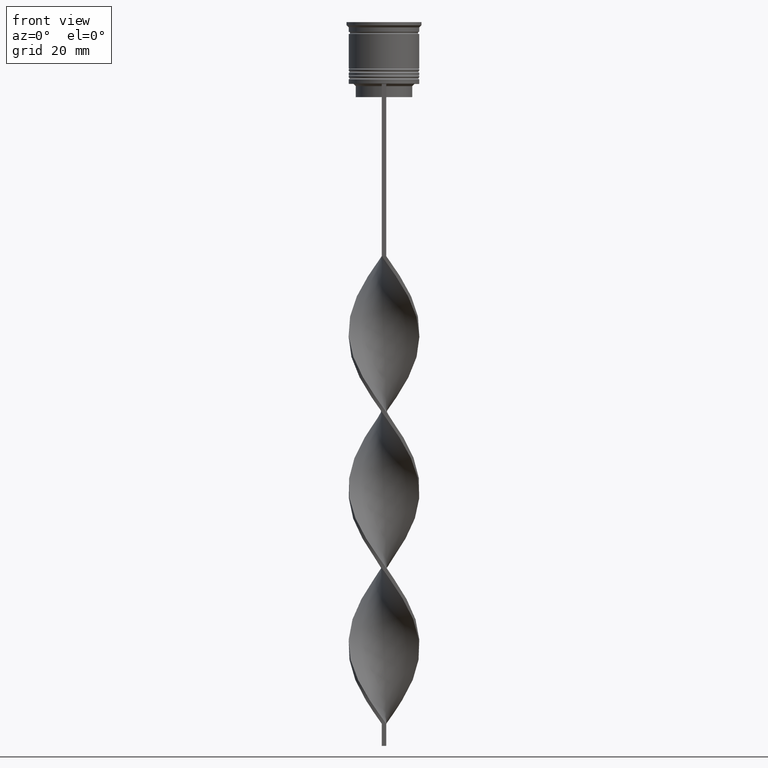
[diagram: clean part render]
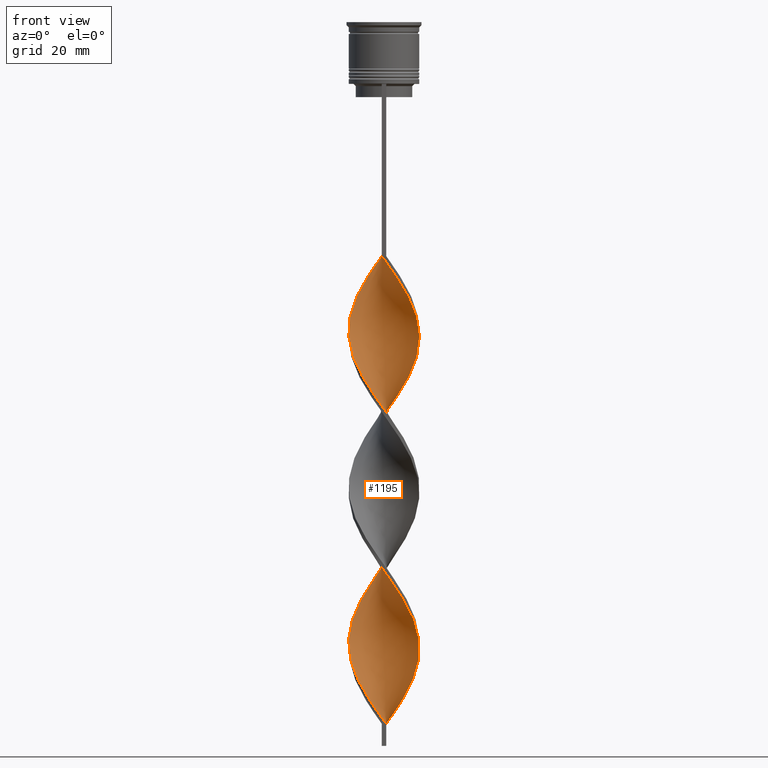
[diagram: same view with one face highlighted and labeled with its STEP entity id]
A machine part, front view. The second image highlights one B-rep face of the part: STEP entity #1195.
In plain terms, the highlighted face is a freeform B-spline surface patch.
Its self-contained STEP definition (entity closure, byte-faithful):
#4 = CARTESIAN_POINT ( 'NONE',  ( 7.178203230275505220, -3.566987298107782589, -100.1111111111111143 ) ) ;
#6 = CARTESIAN_POINT ( 'NONE',  ( -5.106790515527262819, -6.178243328853344707, -116.6000000000000085 ) ) ;
#22 = CARTESIAN_POINT ( 'NONE',  ( -1.340833882125411103, 7.947447882367156602, -124.8444444444444343 ) ) ;
#23 = CARTESIAN_POINT ( 'NONE',  ( -7.453943633173757632, 2.947664213147157763, -102.4666666666666686 ) ) ;
#28 = CARTESIAN_POINT ( 'NONE',  ( -7.144131640230919622, -3.731105258425339244, -75.37777777777777999 ) ) ;
#42 = CARTESIAN_POINT ( 'NONE',  ( 7.453943633173757632, -2.947664213147156875, -137.8000000000000114 ) ) ;
#43 = CARTESIAN_POINT ( 'NONE',  ( 6.678203230275510549, 4.433012701892212526, -111.8888888888888999 ) ) ;
#46 = EDGE_CURVE ( 'NONE', #2836, #1637, #2538, .T. ) ;
#60 = CARTESIAN_POINT ( 'NONE',  ( -5.106790515527257490, 6.178243328853340266, -130.7333333333333485 ) ) ;
#62 = CARTESIAN_POINT ( 'NONE',  ( 0.3408338821254181528, 8.052552117632835404, -122.4888888888888800 ) ) ;
#69 = CARTESIAN_POINT ( 'NONE',  ( 5.106790515527261931, 6.178243328853344707, -81.26666666666666572 ) ) ;
#74 = VERTEX_POINT ( 'NONE', #1601 ) ;
#86 = CARTESIAN_POINT ( 'NONE',  ( -5.756150055891653849, 5.641498017056839842, -61.24444444444443292 ) ) ;
#87 = CARTESIAN_POINT ( 'NONE',  ( -4.457430975162865572, -6.714988640649846019, -117.7777777777777999 ) ) ;
#89 = CARTESIAN_POINT ( 'NONE',  ( -0.4999999999999998890, -8.000000000000003553, -53.00000000000000000 ) ) ;
#99 = CARTESIAN_POINT ( 'NONE',  ( 7.972812552651890705, -1.180687656695943444, -103.6444444444444457 ) ) ;
#109 = CARTESIAN_POINT ( 'NONE',  ( -6.678203230275511437, 4.433012701892224072, -100.1111111111111143 ) ) ;
#120 = CARTESIAN_POINT ( 'NONE',  ( -3.710665873427700490, 7.104995339602903748, -128.3777777777777942 ) ) ;
#124 = CARTESIAN_POINT ( 'NONE',  ( -5.106790515527262819, -6.178243328853344707, -116.6000000000000085 ) ) ;
#136 = CARTESIAN_POINT ( 'NONE',  ( -4.297773521152312703, 6.766028581145818954, -95.40000000000000568 ) ) ;
#154 = CARTESIAN_POINT ( 'NONE',  ( 4.457430975162857578, -6.714988640649844243, -94.22222222222221433 ) ) ;
#181 = CARTESIAN_POINT ( 'NONE',  ( 7.903910931312363886, -1.333488653825366521, -69.48888888888889426 ) ) ;
#197 = CARTESIAN_POINT ( 'NONE',  ( 1.340833882125408216, -7.947447882367158378, -89.51111111111111995 ) ) ;
#198 = CARTESIAN_POINT ( 'NONE',  ( 0.3408338821254121020, -8.052552117632842510, -54.17777777777777715 ) ) ;
#217 = CARTESIAN_POINT ( 'NONE',  ( 8.044066236508127687, 0.5027541397817566482, -106.0000000000000000 ) ) ;
#233 = CARTESIAN_POINT ( 'NONE',  ( 7.178203230275513214, 3.566987298107780813, -147.2222222222222285 ) ) ;
#234 = CARTESIAN_POINT ( 'NONE',  ( 6.678203230275512325, -4.433012701892221408, -64.77777777777778567 ) ) ;
#250 = CARTESIAN_POINT ( 'NONE',  ( 7.144131640230919622, 3.731105258425336135, -110.7111111111110944 ) ) ;
#251 = CARTESIAN_POINT ( 'NONE',  ( 5.106790515527261931, 6.178243328853344707, -151.9333333333333371 ) ) ;
#259 = CARTESIAN_POINT ( 'NONE',  ( 6.212274820320101476, -5.134920145359099131, -63.60000000000000853 ) ) ;
#272 = CARTESIAN_POINT ( 'NONE',  ( 0.5000000000000008882, 8.000000000000003553, -159.0000000000000000 ) ) ;
#273 = CARTESIAN_POINT ( 'NONE',  ( -5.610593300639726166, 5.724617263609566464, -97.75555555555555998 ) ) ;
#290 = CARTESIAN_POINT ( 'NONE',  ( -6.212274820320096147, -5.134920145359094690, -148.4000000000000057 ) ) ;
#292 = CARTESIAN_POINT ( 'NONE',  ( -1.174219726175170564, 7.929136651279328873, -90.68888888888888289 ) ) ;
#298 = CARTESIAN_POINT ( 'NONE',  ( -7.903910931312356780, -1.333488653825362746, -71.84444444444444855 ) ) ;
#299 = CARTESIAN_POINT ( 'NONE',  ( 7.453943633173757632, -2.947664213147156875, -67.13333333333333997 ) ) ;
#301 =( BOUNDED_CURVE ( )  B_SPLINE_CURVE ( 2, ( #2823, #198, #3361, #2248, #1350, #785, #3056, #2843, #2784, #2517, #234, #1020, #1064, #1909, #181, #730, #2229, #436, #3398, #2182, #1949, #3349, #3108, #3077, #1626, #494, #1375, #3127, #3517, #2862, #3717, #2884, #292, #1411, #1766, #2026, #1391, #825, #273, #2613, #2921, #2351, #23, #867, #3209, #1436, #578, #1163, #2554, #2935, #2597, #1752, #902, #1104, #6, #2270, #2066, #2331, #2903, #1448, #2049, #3494, #3440, #2631, #1728, #1990, #890, #1782, #307, #1464, #2311, #599, #42, #615, #1144, #3740, #3223, #3478, #1185, #3145, #2009, #2574, #535, #1708, #251, #1127, #2293, #3186, #3460, #841, #3166 ),
 .UNSPECIFIED., .F., .T. ) 
 B_SPLINE_CURVE_WITH_KNOTS ( ( 3, 2, 2, 2, 2, 2, 2, 2, 2, 2, 2, 2, 2, 2, 2, 2, 2, 2, 2, 2, 2, 2, 2, 2, 2, 2, 2, 2, 2, 2, 2, 2, 2, 2, 2, 2, 2, 2, 2, 2, 2, 2, 2, 2, 2, 3 ),
 ( 0.000000000000000000, 0.01666666666666666644, 0.03333333333333333287, 0.05000000000000000971, 0.06666666666666666574, 0.08333333333333332871, 0.1000000000000000194, 0.1166666666666666546, 0.1333333333333333315, 0.1499999999999999944, 0.1666666666666666574, 0.1833333333333333204, 0.2000000000000000389, 0.2166666666666666741, 0.2333333333333333093, 0.2500000000000000000, 0.2666666666666666630, 0.2833333333333333259, 0.2999999999999999889, 0.3166666666666666519, 0.3333333333333333148, 0.3499999999999999223, 0.3666666666666666408, 0.3833333333333333592, 0.4000000000000000777, 0.4166666666666666852, 0.4333333333333333481, 0.4500000000000000111, 0.4666666666666666186, 0.4833333333333333370, 0.5000000000000000000, 0.5166666666666667185, 0.5333333333333333259, 0.5500000000000000444, 0.5666666666666666519, 0.5833333333333333703, 0.5999999999999999778, 0.6166666666666666963, 0.6333333333333333037, 0.6500000000000000222, 0.6666666666666666297, 0.6833333333333332371, 0.6999999999999998446, 0.7166666666666666741, 0.7333333333333332815, 0.7500000000000000000 ),
 .UNSPECIFIED. ) 
 CURVE ( )  GEOMETRIC_REPRESENTATION_ITEM ( )  RATIONAL_B_SPLINE_CURVE ( ( 1.000000000000000000, 0.9945218953682732899, 1.000000000000000000, 0.9945218953682732899, 1.000000000000000000, 0.9945218953682732899, 1.000000000000000000, 0.9945218953682732899, 1.000000000000000000, 0.9945218953682732899, 1.000000000000000000, 0.9945218953682732899, 1.000000000000000000, 0.9945218953682732899, 1.000000000000000000, 0.9945218953682732899, 1.000000000000000000, 0.9945218953682732899, 1.000000000000000000, 0.9945218953682732899, 1.000000000000000000, 0.9945218953682732899, 1.000000000000000000, 0.9945218953682732899, 1.000000000000000000, 0.9945218953682732899, 1.000000000000000000, 0.9945218953682732899, 1.000000000000000000, 0.9945218953682732899, 1.000000000000000000, 0.9945218953682732899, 1.000000000000000000, 0.9945218953682732899, 1.000000000000000000, 0.9945218953682732899, 1.000000000000000000, 0.9945218953682732899, 1.000000000000000000, 0.9945218953682732899, 1.000000000000000000, 0.9945218953682732899, 1.000000000000000000, 0.9945218953682732899, 1.000000000000000000, 0.9945218953682732899, 1.000000000000000000, 0.9945218953682732899, 1.000000000000000000, 0.9945218953682732899, 1.000000000000000000, 0.9945218953682732899, 1.000000000000000000, 0.9945218953682732899, 1.000000000000000000, 0.9945218953682732899, 1.000000000000000000, 0.9945218953682732899, 1.000000000000000000, 0.9945218953682732899, 1.000000000000000000, 0.9945218953682732899, 1.000000000000000000, 0.9945218953682732899, 1.000000000000000000, 0.9945218953682732899, 1.000000000000000000, 0.9945218953682732899, 1.000000000000000000, 0.9945218953682732899, 1.000000000000000000, 0.9945218953682732899, 1.000000000000000000, 0.9945218953682732899, 1.000000000000000000, 0.9945218953682732899, 1.000000000000000000, 0.9945218953682732899, 1.000000000000000000, 0.9945218953682732899, 1.000000000000000000, 0.9945218953682732899, 1.000000000000000000, 0.9945218953682732899, 1.000000000000000000, 0.9945218953682732899, 1.000000000000000000, 0.9945218953682732899, 1.000000000000000000, 0.9945218953682732899, 1.000000000000000000 ) ) 
 REPRESENTATION_ITEM ( '' )  );
#307 = CARTESIAN_POINT ( 'NONE',  ( 5.610593300639727055, -5.724617263609565576, -133.0888888888889028 ) ) ;
#320 =( BOUNDED_SURFACE ( )  B_SPLINE_SURFACE ( 1, 2, ( 
 ( #3483, #3155, #1719, #1170, #587, #3214, #2603, #2909, #2342, #259, #1425, #1153, #299, #3468, #2322, #896, #1209, #944, #1558, #3026, #2736, #984, #2149, #3609, #69, #2676, #1004, #1929, #372, #1839, #1498, #1536, #2969, #2114, #2095, #3565, #136, #406, #2697, #2375, #109, #701, #3007, #351, #1863, #3311, #2721, #921, #1572, #1810, #1289, #336, #3253, #1824, #124, #87, #3271, #658, #644, #3543, #392, #2449, #2213, #3381, #2986, #1517, #1229, #766, #1254, #3290, #2658, #2394, #678, #2417, #3582, #965, #2130, #1274, #2433, #3598, #233, #1686, #1103, #3438, #1643, #475, #3165, #2310, #1948, #3716, #272 ),
 ( #2516, #1967, #534, #840, #2228, #3397, #1374, #3477, #2292, #2534, #2008, #1410, #1143, #3696, #2822, #1390, #2247, #801, #1083, #3459, #784, #2553, #3676, #2595, #866, #2269, #3091, #553, #3415, #2798, #824, #197, #1727, #2883, #1989, #3144, #1435, #1349, #3126, #1661, #4, #517, #1063, #3107, #2842, #217, #493, #1707, #2861, #250, #2573, #3739, #1125, #1489, #2651, #1751, #632, #2980, #901, #1184, #3208, #22, #3221, #2330, #3493, #2902, #60, #2630, #2025, #1447, #889, #1221, #363, #2048, #577, #3516, #2383, #2612, #914, #1200, #2367, #290, #1801, #1528, #2065, #2350, #598, #1162, #614, #1764, #2920 ) ),
 .UNSPECIFIED., .F., .F., .F. ) 
 B_SPLINE_SURFACE_WITH_KNOTS ( ( 2, 2 ),
 ( 3, 2, 2, 2, 2, 2, 2, 2, 2, 2, 2, 2, 2, 2, 2, 2, 2, 2, 2, 2, 2, 2, 2, 2, 2, 2, 2, 2, 2, 2, 2, 2, 2, 2, 2, 2, 2, 2, 2, 2, 2, 2, 2, 2, 2, 3 ),
 ( 0.000000000000000000, 1.000000000000000000 ),
 ( 0.000000000000000000, 0.01666666666666666644, 0.03333333333333333287, 0.05000000000000000278, 0.06666666666666666574, 0.08333333333333332871, 0.1000000000000000056, 0.1166666666666666685, 0.1333333333333333315, 0.1499999999999999944, 0.1666666666666666574, 0.1833333333333333204, 0.2000000000000000111, 0.2166666666666666741, 0.2333333333333333370, 0.2500000000000000000, 0.2666666666666666630, 0.2833333333333333259, 0.2999999999999999889, 0.3166666666666666519, 0.3333333333333333148, 0.3499999999999999778, 0.3666666666666666408, 0.3833333333333333592, 0.4000000000000000222, 0.4166666666666666852, 0.4333333333333333481, 0.4500000000000000111, 0.4666666666666666741, 0.4833333333333333370, 0.5000000000000000000, 0.5166666666666667185, 0.5333333333333333259, 0.5500000000000000444, 0.5666666666666666519, 0.5833333333333333703, 0.5999999999999999778, 0.6166666666666666963, 0.6333333333333333037, 0.6500000000000000222, 0.6666666666666666297, 0.6833333333333333481, 0.6999999999999999556, 0.7166666666666666741, 0.7333333333333332815, 0.7500000000000000000 ),
 .UNSPECIFIED. ) 
 GEOMETRIC_REPRESENTATION_ITEM ( )  RATIONAL_B_SPLINE_SURFACE ( (
 ( 1.000000000000000000, 0.9945218953682732899, 1.000000000000000000, 0.9945218953682732899, 1.000000000000000000, 0.9945218953682732899, 1.000000000000000000, 0.9945218953682732899, 1.000000000000000000, 0.9945218953682732899, 1.000000000000000000, 0.9945218953682732899, 1.000000000000000000, 0.9945218953682732899, 1.000000000000000000, 0.9945218953682732899, 1.000000000000000000, 0.9945218953682732899, 1.000000000000000000, 0.9945218953682732899, 1.000000000000000000, 0.9945218953682732899, 1.000000000000000000, 0.9945218953682732899, 1.000000000000000000, 0.9945218953682732899, 1.000000000000000000, 0.9945218953682732899, 1.000000000000000000, 0.9945218953682732899, 1.000000000000000000, 0.9945218953682732899, 1.000000000000000000, 0.9945218953682732899, 1.000000000000000000, 0.9945218953682732899, 1.000000000000000000, 0.9945218953682732899, 1.000000000000000000, 0.9945218953682732899, 1.000000000000000000, 0.9945218953682732899, 1.000000000000000000, 0.9945218953682732899, 1.000000000000000000, 0.9945218953682732899, 1.000000000000000000, 0.9945218953682732899, 1.000000000000000000, 0.9945218953682732899, 1.000000000000000000, 0.9945218953682732899, 1.000000000000000000, 0.9945218953682732899, 1.000000000000000000, 0.9945218953682732899, 1.000000000000000000, 0.9945218953682732899, 1.000000000000000000, 0.9945218953682732899, 1.000000000000000000, 0.9945218953682732899, 1.000000000000000000, 0.9945218953682732899, 1.000000000000000000, 0.9945218953682732899, 1.000000000000000000, 0.9945218953682732899, 1.000000000000000000, 0.9945218953682732899, 1.000000000000000000, 0.9945218953682732899, 1.000000000000000000, 0.9945218953682732899, 1.000000000000000000, 0.9945218953682732899, 1.000000000000000000, 0.9945218953682732899, 1.000000000000000000, 0.9945218953682732899, 1.000000000000000000, 0.9945218953682732899, 1.000000000000000000, 0.9945218953682732899, 1.000000000000000000, 0.9945218953682732899, 1.000000000000000000, 0.9945218953682732899, 1.000000000000000000, 0.9945218953682732899, 1.000000000000000000),
 ( 1.000000000000000000, 0.9945218953682732899, 1.000000000000000000, 0.9945218953682732899, 1.000000000000000000, 0.9945218953682732899, 1.000000000000000000, 0.9945218953682732899, 1.000000000000000000, 0.9945218953682732899, 1.000000000000000000, 0.9945218953682732899, 1.000000000000000000, 0.9945218953682732899, 1.000000000000000000, 0.9945218953682732899, 1.000000000000000000, 0.9945218953682732899, 1.000000000000000000, 0.9945218953682732899, 1.000000000000000000, 0.9945218953682732899, 1.000000000000000000, 0.9945218953682732899, 1.000000000000000000, 0.9945218953682732899, 1.000000000000000000, 0.9945218953682732899, 1.000000000000000000, 0.9945218953682732899, 1.000000000000000000, 0.9945218953682732899, 1.000000000000000000, 0.9945218953682732899, 1.000000000000000000, 0.9945218953682732899, 1.000000000000000000, 0.9945218953682732899, 1.000000000000000000, 0.9945218953682732899, 1.000000000000000000, 0.9945218953682732899, 1.000000000000000000, 0.9945218953682732899, 1.000000000000000000, 0.9945218953682732899, 1.000000000000000000, 0.9945218953682732899, 1.000000000000000000, 0.9945218953682732899, 1.000000000000000000, 0.9945218953682732899, 1.000000000000000000, 0.9945218953682732899, 1.000000000000000000, 0.9945218953682732899, 1.000000000000000000, 0.9945218953682732899, 1.000000000000000000, 0.9945218953682732899, 1.000000000000000000, 0.9945218953682732899, 1.000000000000000000, 0.9945218953682732899, 1.000000000000000000, 0.9945218953682732899, 1.000000000000000000, 0.9945218953682732899, 1.000000000000000000, 0.9945218953682732899, 1.000000000000000000, 0.9945218953682732899, 1.000000000000000000, 0.9945218953682732899, 1.000000000000000000, 0.9945218953682732899, 1.000000000000000000, 0.9945218953682732899, 1.000000000000000000, 0.9945218953682732899, 1.000000000000000000, 0.9945218953682732899, 1.000000000000000000, 0.9945218953682732899, 1.000000000000000000, 0.9945218953682732899, 1.000000000000000000, 0.9945218953682732899, 1.000000000000000000, 0.9945218953682732899, 1.000000000000000000) ) ) 
 REPRESENTATION_ITEM ( '' )  SURFACE ( )  );
#327 = CARTESIAN_POINT ( 'NONE',  ( 4.297773521152310927, 6.766028581145813625, -116.6000000000000085 ) ) ;
#336 = CARTESIAN_POINT ( 'NONE',  ( -6.803297758105513182, -4.321446859207497049, -113.0666666666666487 ) ) ;
#345 = CARTESIAN_POINT ( 'NONE',  ( 2.797120415785105951, 7.511731982678701236, -118.9555555555555628 ) ) ;
#351 = CARTESIAN_POINT ( 'NONE',  ( -7.763755626116591202, 2.164223167868974951, -103.6444444444444457 ) ) ;
#363 = CARTESIAN_POINT ( 'NONE',  ( -7.762960627548698866, 1.996607696852001457, -137.8000000000000114 ) ) ;
#366 = CARTESIAN_POINT ( 'NONE',  ( -7.972812552651890705, 1.180687656695940779, -138.9777777777777885 ) ) ;
#371 = CARTESIAN_POINT ( 'NONE',  ( -7.763755626116585873, -2.164223167868968734, -73.02222222222221149 ) ) ;
#372 = CARTESIAN_POINT ( 'NONE',  ( 2.152367326908981138, 7.721224960461567477, -85.97777777777777430 ) ) ;
#384 = CARTESIAN_POINT ( 'NONE',  ( -7.763755626116585873, -2.164223167868968734, -143.6888888888888971 ) ) ;
#390 = CARTESIAN_POINT ( 'NONE',  ( -5.008911780959351745, -6.314314381860024028, -80.08888888888888857 ) ) ;
#392 = CARTESIAN_POINT ( 'NONE',  ( -0.4999999999999998890, -8.000000000000003553, -123.6666666666666714 ) ) ;
#406 = CARTESIAN_POINT ( 'NONE',  ( -5.008911780959350857, 6.314314381860031133, -96.57777777777775441 ) ) ;
#436 = CARTESIAN_POINT ( 'NONE',  ( 7.972812552651897811, 1.180687656695939447, -73.02222222222221149 ) ) ;
#439 = CARTESIAN_POINT ( 'NONE',  ( 0.4999999999999989453, -7.999999999999996447, -88.33333333333332860 ) ) ;
#447 = ORIENTED_EDGE ( 'NONE', *, *, #2750, .F. ) ;
#475 = CARTESIAN_POINT ( 'NONE',  ( 4.457430975162865572, 6.714988640649846907, -153.1111111111110858 ) ) ;
#493 = CARTESIAN_POINT ( 'NONE',  ( 7.903910931312356780, 1.333488653825360082, -107.1777777777777771 ) ) ;
#494 = CARTESIAN_POINT ( 'NONE',  ( 4.457430975162866460, 6.714988640649846019, -82.44444444444444287 ) ) ;
#517 = CARTESIAN_POINT ( 'NONE',  ( 7.553108702445504363, -2.812527737008069462, -101.2888888888888914 ) ) ;
#534 = CARTESIAN_POINT ( 'NONE',  ( -2.152367326908976697, 7.721224960461563036, -55.35555555555555429 ) ) ;
#535 = CARTESIAN_POINT ( 'NONE',  ( 6.279723906998587069, 4.981472438132168001, -149.5777777777777828 ) ) ;
#553 = CARTESIAN_POINT ( 'NONE',  ( -2.007605570224932023, -7.805721184925808132, -84.79999999999998295 ) ) ;
#565 = VECTOR ( 'NONE', #2037, 1000.000000000000000 ) ;
#577 = CARTESIAN_POINT ( 'NONE',  ( -8.008439394580010529, 0.3389667584570925096, -140.1555555555555657 ) ) ;
#578 = CARTESIAN_POINT ( 'NONE',  ( -8.008439394580017634, -0.3389667584570877357, -107.1777777777777771 ) ) ;
#585 = CARTESIAN_POINT ( 'NONE',  ( -7.453943633173752303, -2.947664213147154655, -74.20000000000000284 ) ) ;
#587 = CARTESIAN_POINT ( 'NONE',  ( 2.797120415785102399, -7.511731982678711006, -57.71111111111110858 ) ) ;
#594 = CARTESIAN_POINT ( 'NONE',  ( 0.4999999999999989453, -7.999999999999996447, -159.0000000000000000 ) ) ;
#598 = CARTESIAN_POINT ( 'NONE',  ( -2.797120415785101954, -7.511731982678703012, -154.2888888888888914 ) ) ;
#599 = CARTESIAN_POINT ( 'NONE',  ( 7.144131640230924063, -3.731105258425344129, -136.6222222222222342 ) ) ;
#600 = CARTESIAN_POINT ( 'NONE',  ( -6.678203230275506996, -4.433012701892216079, -147.2222222222222285 ) ) ;
#614 = CARTESIAN_POINT ( 'NONE',  ( -1.174219726175174561, -7.929136651279319992, -156.6444444444444457 ) ) ;
#615 = CARTESIAN_POINT ( 'NONE',  ( 7.763755626116591202, -2.164223167868972286, -138.9777777777777885 ) ) ;
#616 = CARTESIAN_POINT ( 'NONE',  ( -6.279723906998579963, 4.981472438132166225, -133.0888888888889028 ) ) ;
#620 = LINE ( 'NONE', #1454, #565 ) ;
#632 = CARTESIAN_POINT ( 'NONE',  ( 2.797120415785105951, 7.511731982678701236, -118.9555555555555628 ) ) ;
#635 = CARTESIAN_POINT ( 'NONE',  ( -1.174219726175174561, -7.929136651279319992, -156.6444444444444457 ) ) ;
#644 = CARTESIAN_POINT ( 'NONE',  ( -2.152367326908982026, -7.721224960461567477, -121.3111111111111171 ) ) ;
#653 = CARTESIAN_POINT ( 'NONE',  ( 5.610593300639725278, 5.724617263609557583, -114.2444444444444542 ) ) ;
#657 = CARTESIAN_POINT ( 'NONE',  ( -8.008439394580010529, 0.3389667584570925096, -69.48888888888889426 ) ) ;
#658 = CARTESIAN_POINT ( 'NONE',  ( -2.963900771692546510, -7.495002038555971247, -120.1333333333333400 ) ) ;
#673 = CARTESIAN_POINT ( 'NONE',  ( -0.4999999999999998890, 7.999999999999996447, -123.6666666666666714 ) ) ;
#678 = CARTESIAN_POINT ( 'NONE',  ( 7.453943633173757632, -2.947664213147156875, -137.8000000000000114 ) ) ;
#699 = CARTESIAN_POINT ( 'NONE',  ( -5.610593300639724390, -5.724617263609558471, -78.91111111111111143 ) ) ;
#701 = CARTESIAN_POINT ( 'NONE',  ( -7.144131640230920510, 3.731105258425349014, -101.2888888888888914 ) ) ;
#715 = CARTESIAN_POINT ( 'NONE',  ( 1.340833882125408216, -7.947447882367158378, -89.51111111111110574 ) ) ;
#730 = CARTESIAN_POINT ( 'NONE',  ( 8.044066236508134793, -0.5027541397817586466, -70.66666666666667140 ) ) ;
#766 = CARTESIAN_POINT ( 'NONE',  ( 5.008911780959353521, -6.314314381860030245, -131.9111111111111256 ) ) ;
#784 = CARTESIAN_POINT ( 'NONE',  ( -6.678203230275506996, -4.433012701892216079, -76.55555555555555713 ) ) ;
#785 = CARTESIAN_POINT ( 'NONE',  ( 3.586635261345271886, -7.217742780431606775, -58.88888888888888573 ) ) ;
#801 = CARTESIAN_POINT ( 'NONE',  ( -7.763755626116584985, -2.164223167868968734, -73.02222222222219727 ) ) ;
#824 = CARTESIAN_POINT ( 'NONE',  ( 0.4999999999999989453, -7.999999999999996447, -88.33333333333332860 ) ) ;
#825 = CARTESIAN_POINT ( 'NONE',  ( -5.008911780959351745, 6.314314381860032022, -96.57777777777776862 ) ) ;
#840 = CARTESIAN_POINT ( 'NONE',  ( -2.963900771692542513, 7.495002038555964141, -56.53333333333331723 ) ) ;
#841 = CARTESIAN_POINT ( 'NONE',  ( 1.340833882125414211, 7.947447882367163707, -157.8222222222221944 ) ) ;
#866 = CARTESIAN_POINT ( 'NONE',  ( -4.297773521152310039, -6.766028581145813625, -81.26666666666666572 ) ) ;
#867 = CARTESIAN_POINT ( 'NONE',  ( -7.763755626116591202, 2.164223167868974951, -103.6444444444444457 ) ) ;
#889 = CARTESIAN_POINT ( 'NONE',  ( -7.178203230275506108, 3.566987298107779925, -135.4444444444444571 ) ) ;
#890 = CARTESIAN_POINT ( 'NONE',  ( 4.297773521152313592, -6.766028581145818954, -130.7333333333333485 ) ) ;
#891 = CARTESIAN_POINT ( 'NONE',  ( 2.007605570224933356, 7.805721184925808132, -120.1333333333333400 ) ) ;
#896 = CARTESIAN_POINT ( 'NONE',  ( 8.044066236508134793, -0.5027541397817586466, -70.66666666666667140 ) ) ;
#901 = CARTESIAN_POINT ( 'NONE',  ( 1.174219726175175671, 7.929136651279319992, -121.3111111111111171 ) ) ;
#902 = CARTESIAN_POINT ( 'NONE',  ( -6.279723906998587957, -4.981472438132167113, -114.2444444444444542 ) ) ;
#903 = CARTESIAN_POINT ( 'NONE',  ( -8.044066236508127687, -0.5027541397817575364, -141.3333333333333428 ) ) ;
#914 = CARTESIAN_POINT ( 'NONE',  ( -7.453943633173752303, -2.947664213147154655, -144.8666666666666742 ) ) ;
#916 = CARTESIAN_POINT ( 'NONE',  ( -2.152367326908976697, 7.721224960461563036, -126.0222222222222257 ) ) ;
#921 = CARTESIAN_POINT ( 'NONE',  ( -7.972812552651898699, -1.180687656695935006, -108.3555555555555543 ) ) ;
#935 = CARTESIAN_POINT ( 'NONE',  ( 0.4999999999999989453, -7.999999999999996447, -159.0000000000000000 ) ) ;
#943 = CARTESIAN_POINT ( 'NONE',  ( -7.178203230275506108, 3.566987298107779925, -64.77777777777778567 ) ) ;
#944 = CARTESIAN_POINT ( 'NONE',  ( 7.972812552651896922, 1.180687656695939669, -73.02222222222219727 ) ) ;
#958 = CARTESIAN_POINT ( 'NONE',  ( 7.453943633173752303, 2.947664213147153767, -109.5333333333333456 ) ) ;
#965 = CARTESIAN_POINT ( 'NONE',  ( 8.044066236508134793, -0.5027541397817586466, -141.3333333333333428 ) ) ;
#984 = CARTESIAN_POINT ( 'NONE',  ( 6.803297758105512294, 4.321446859207497937, -77.73333333333333428 ) ) ;
#1004 = CARTESIAN_POINT ( 'NONE',  ( 3.710665873427705375, 7.104995339602909077, -83.62222222222222001 ) ) ;
#1020 = CARTESIAN_POINT ( 'NONE',  ( 7.144131640230924063, -3.731105258425344129, -65.95555555555556282 ) ) ;
#1043 = EDGE_CURVE ( 'NONE', #2487, #2836, #620, .T. ) ;
#1063 = CARTESIAN_POINT ( 'NONE',  ( 7.762960627548698866, -1.996607696852002345, -102.4666666666666686 ) ) ;
#1064 = CARTESIAN_POINT ( 'NONE',  ( 7.453943633173757632, -2.947664213147156875, -67.13333333333333997 ) ) ;
#1083 = CARTESIAN_POINT ( 'NONE',  ( -7.453943633173752303, -2.947664213147154655, -74.20000000000000284 ) ) ;
#1103 = CARTESIAN_POINT ( 'NONE',  ( 6.279723906998587069, 4.981472438132168001, -149.5777777777777828 ) ) ;
#1104 = CARTESIAN_POINT ( 'NONE',  ( -5.756150055891663619, -5.641498017056838954, -115.4222222222222314 ) ) ;
#1125 = CARTESIAN_POINT ( 'NONE',  ( 5.610593300639725278, 5.724617263609557583, -114.2444444444444542 ) ) ;
#1127 = CARTESIAN_POINT ( 'NONE',  ( 4.457430975162866460, 6.714988640649846019, -153.1111111111111143 ) ) ;
#1143 = CARTESIAN_POINT ( 'NONE',  ( -7.762960627548698866, 1.996607696852001457, -67.13333333333333997 ) ) ;
#1144 = CARTESIAN_POINT ( 'NONE',  ( 7.903910931312363886, -1.333488653825366521, -140.1555555555555657 ) ) ;
#1153 = CARTESIAN_POINT ( 'NONE',  ( 7.144131640230924063, -3.731105258425344129, -65.95555555555556282 ) ) ;
#1162 = CARTESIAN_POINT ( 'NONE',  ( -2.007605570224932023, -7.805721184925808132, -155.4666666666666686 ) ) ;
#1163 = CARTESIAN_POINT ( 'NONE',  ( -7.972812552651899587, -1.180687656695935006, -108.3555555555555543 ) ) ;
#1170 = CARTESIAN_POINT ( 'NONE',  ( 2.007605570224933356, -7.805721184925815237, -56.53333333333331723 ) ) ;
#1184 = CARTESIAN_POINT ( 'NONE',  ( 0.3408338821254181528, 8.052552117632835404, -122.4888888888888800 ) ) ;
#1185 = CARTESIAN_POINT ( 'NONE',  ( 7.762960627548706860, 1.996607696852002789, -144.8666666666666742 ) ) ;
#1186 = CARTESIAN_POINT ( 'NONE',  ( -6.212274820320096147, -5.134920145359094690, -148.4000000000000057 ) ) ;
#1195 = ADVANCED_FACE ( 'NONE', ( #3724 ), #320, .T. ) ;
#1200 = CARTESIAN_POINT ( 'NONE',  ( -7.144131640230918734, -3.731105258425338800, -146.0444444444443945 ) ) ;
#1202 = CARTESIAN_POINT ( 'NONE',  ( 1.174219726175175671, 7.929136651279319992, -121.3111111111111171 ) ) ;
#1209 = CARTESIAN_POINT ( 'NONE',  ( 8.008439394580017634, 0.3389667584570904557, -71.84444444444444855 ) ) ;
#1221 = CARTESIAN_POINT ( 'NONE',  ( -7.553108702445506140, 2.812527737008064133, -136.6222222222222342 ) ) ;
#1228 = CARTESIAN_POINT ( 'NONE',  ( -6.279723906998579963, 4.981472438132166225, -62.42222222222221717 ) ) ;
#1229 = CARTESIAN_POINT ( 'NONE',  ( 4.297773521152313592, -6.766028581145818954, -130.7333333333333485 ) ) ;
#1253 = CARTESIAN_POINT ( 'NONE',  ( -2.007605570224932023, -7.805721184925808132, -84.79999999999998295 ) ) ;
#1254 = CARTESIAN_POINT ( 'NONE',  ( 5.610593300639727055, -5.724617263609565576, -133.0888888888889028 ) ) ;
#1267 = CARTESIAN_POINT ( 'NONE',  ( -7.553108702445505251, 2.812527737008064577, -136.6222222222222342 ) ) ;
#1273 = CARTESIAN_POINT ( 'NONE',  ( -6.212274820320096147, -5.134920145359094690, -77.73333333333333428 ) ) ;
#1274 = CARTESIAN_POINT ( 'NONE',  ( 7.972812552651896922, 1.180687656695939669, -143.6888888888888971 ) ) ;
#1289 = CARTESIAN_POINT ( 'NONE',  ( -7.178203230275514990, -3.566987298107776816, -111.8888888888888999 ) ) ;
#1309 = CARTESIAN_POINT ( 'NONE',  ( 5.106790515527256602, -6.178243328853340266, -95.40000000000000568 ) ) ;
#1349 = CARTESIAN_POINT ( 'NONE',  ( 5.756150055891652073, -5.641498017056840730, -96.57777777777775441 ) ) ;
#1350 = CARTESIAN_POINT ( 'NONE',  ( 2.797120415785102399, -7.511731982678711006, -57.71111111111110858 ) ) ;
#1374 = CARTESIAN_POINT ( 'NONE',  ( -5.106790515527257490, 6.178243328853340266, -60.06666666666666288 ) ) ;
#1375 = CARTESIAN_POINT ( 'NONE',  ( 3.710665873427705375, 7.104995339602909077, -83.62222222222222001 ) ) ;
#1389 = CARTESIAN_POINT ( 'NONE',  ( 0.5000000000000008882, 8.000000000000003553, -159.0000000000000000 ) ) ;
#1390 = CARTESIAN_POINT ( 'NONE',  ( -8.044066236508127687, -0.5027541397817575364, -70.66666666666667140 ) ) ;
#1391 = CARTESIAN_POINT ( 'NONE',  ( -4.297773521152312703, 6.766028581145818954, -95.40000000000000568 ) ) ;
#1410 = CARTESIAN_POINT ( 'NONE',  ( -7.553108702445506140, 2.812527737008064133, -65.95555555555556282 ) ) ;
#1411 = CARTESIAN_POINT ( 'NONE',  ( -2.007605570224932467, 7.805721184925816125, -91.86666666666666003 ) ) ;
#1425 = CARTESIAN_POINT ( 'NONE',  ( 6.678203230275512325, -4.433012701892221408, -64.77777777777778567 ) ) ;
#1435 = CARTESIAN_POINT ( 'NONE',  ( 5.106790515527256602, -6.178243328853340266, -95.40000000000000568 ) ) ;
#1436 = CARTESIAN_POINT ( 'NONE',  ( -8.044066236508134793, 0.5027541397817596458, -106.0000000000000000 ) ) ;
#1447 = CARTESIAN_POINT ( 'NONE',  ( -6.803297758105507853, 4.321446859207494384, -134.2666666666666231 ) ) ;
#1448 = CARTESIAN_POINT ( 'NONE',  ( -1.340833882125418652, -7.947447882367163707, -122.4888888888888800 ) ) ;
#1454 = CARTESIAN_POINT ( 'NONE',  ( -0.4999999999999998890, -8.000000000000003553, -53.00000000000000000 ) ) ;
#1464 = CARTESIAN_POINT ( 'NONE',  ( 6.212274820320101476, -5.134920145359100019, -134.2666666666666515 ) ) ;
#1466 = CARTESIAN_POINT ( 'NONE',  ( 8.044066236508127687, 0.5027541397817566482, -106.0000000000000000 ) ) ;
#1489 = CARTESIAN_POINT ( 'NONE',  ( 5.008911780959354410, 6.314314381860021363, -115.4222222222222456 ) ) ;
#1491 = CARTESIAN_POINT ( 'NONE',  ( 3.586635261345272330, 7.217742780431597893, -117.7777777777777857 ) ) ;
#1498 = CARTESIAN_POINT ( 'NONE',  ( 0.5000000000000008882, 8.000000000000003553, -88.33333333333332860 ) ) ;
#1516 = CARTESIAN_POINT ( 'NONE',  ( -5.106790515527257490, 6.178243328853340266, -60.06666666666666288 ) ) ;
#1517 = CARTESIAN_POINT ( 'NONE',  ( 3.586635261345271442, -7.217742780431606775, -129.5555555555555429 ) ) ;
#1528 = CARTESIAN_POINT ( 'NONE',  ( -5.008911780959350857, -6.314314381860024028, -150.7555555555555600 ) ) ;
#1531 = CARTESIAN_POINT ( 'NONE',  ( -7.144131640230919622, -3.731105258425339244, -146.0444444444444230 ) ) ;
#1535 = CARTESIAN_POINT ( 'NONE',  ( -2.152367326908976697, 7.721224960461563036, -55.35555555555555429 ) ) ;
#1536 = CARTESIAN_POINT ( 'NONE',  ( -0.3408338821254087714, 8.052552117632844286, -89.51111111111111995 ) ) ;
#1540 = B_SPLINE_CURVE_WITH_KNOTS ( 'NONE', 3,
 ( #1389, #3161, #3181, #594 ),
 .UNSPECIFIED., .F., .F.,
 ( 4, 4 ),
 ( 0.000000000000000000, 1.000000000000000000 ),
 .UNSPECIFIED. ) ;
#1552 = CARTESIAN_POINT ( 'NONE',  ( -5.008911780959351745, -6.314314381860024028, -150.7555555555555600 ) ) ;
#1558 = CARTESIAN_POINT ( 'NONE',  ( 7.762960627548706860, 1.996607696852002789, -74.20000000000000284 ) ) ;
#1572 = CARTESIAN_POINT ( 'NONE',  ( -7.762960627548706860, -1.996607696852001901, -109.5333333333333456 ) ) ;
#1587 = CARTESIAN_POINT ( 'NONE',  ( -1.174219726175174561, -7.929136651279319992, -85.97777777777777430 ) ) ;
#1601 = CARTESIAN_POINT ( 'NONE',  ( 0.5000000000000008882, 8.000000000000003553, -159.0000000000000000 ) ) ;
#1626 = CARTESIAN_POINT ( 'NONE',  ( 5.106790515527261931, 6.178243328853344707, -81.26666666666666572 ) ) ;
#1637 = VERTEX_POINT ( 'NONE', #3394 ) ;
#1643 = CARTESIAN_POINT ( 'NONE',  ( 5.106790515527261931, 6.178243328853344707, -151.9333333333333371 ) ) ;
#1661 = CARTESIAN_POINT ( 'NONE',  ( 6.803297758105506965, -4.321446859207495272, -98.93333333333332291 ) ) ;
#1686 = CARTESIAN_POINT ( 'NONE',  ( 6.803297758105512294, 4.321446859207497937, -148.4000000000000057 ) ) ;
#1707 = CARTESIAN_POINT ( 'NONE',  ( 7.763755626116586761, 2.164223167868963404, -108.3555555555555543 ) ) ;
#1708 = CARTESIAN_POINT ( 'NONE',  ( 5.756150055891660067, 5.641498017056842507, -150.7555555555555600 ) ) ;
#1719 = CARTESIAN_POINT ( 'NONE',  ( 1.174219726175172562, -7.929136651279328873, -55.35555555555555429 ) ) ;
#1727 = CARTESIAN_POINT ( 'NONE',  ( 2.152367326908974476, -7.721224960461563036, -90.68888888888888289 ) ) ;
#1728 = CARTESIAN_POINT ( 'NONE',  ( 2.797120415785102399, -7.511731982678711006, -128.3777777777777942 ) ) ;
#1751 = CARTESIAN_POINT ( 'NONE',  ( 3.586635261345271886, 7.217742780431597893, -117.7777777777777999 ) ) ;
#1752 = CARTESIAN_POINT ( 'NONE',  ( -6.803297758105514070, -4.321446859207497049, -113.0666666666666629 ) ) ;
#1764 = CARTESIAN_POINT ( 'NONE',  ( -0.3408338821254136564, -8.052552117632835404, -157.8222222222221660 ) ) ;
#1766 = CARTESIAN_POINT ( 'NONE',  ( -2.797120415785099734, 7.511731982678712782, -93.04444444444443718 ) ) ;
#1767 = CARTESIAN_POINT ( 'NONE',  ( -2.963900771692542069, 7.495002038555965029, -127.2000000000000028 ) ) ;
#1782 = CARTESIAN_POINT ( 'NONE',  ( 5.008911780959354410, -6.314314381860031133, -131.9111111111111256 ) ) ;
#1783 = CARTESIAN_POINT ( 'NONE',  ( -8.008439394580010529, 0.3389667584570925096, -140.1555555555555657 ) ) ;
#1801 = CARTESIAN_POINT ( 'NONE',  ( -5.610593300639724390, -5.724617263609558471, -149.5777777777777828 ) ) ;
#1803 = CARTESIAN_POINT ( 'NONE',  ( -0.3408338821254136564, -8.052552117632835404, -157.8222222222221944 ) ) ;
#1809 = CARTESIAN_POINT ( 'NONE',  ( -2.963900771692542069, 7.495002038555965029, -56.53333333333332433 ) ) ;
#1810 = CARTESIAN_POINT ( 'NONE',  ( -7.553108702445514133, -2.812527737008061912, -110.7111111111110944 ) ) ;
#1823 = CARTESIAN_POINT ( 'NONE',  ( -4.457430975162859355, 6.714988640649843354, -58.88888888888888573 ) ) ;
#1824 = CARTESIAN_POINT ( 'NONE',  ( -5.756150055891663619, -5.641498017056838954, -115.4222222222222456 ) ) ;
#1839 = CARTESIAN_POINT ( 'NONE',  ( 1.340833882125414211, 7.947447882367162819, -87.15555555555553724 ) ) ;
#1863 = CARTESIAN_POINT ( 'NONE',  ( -7.903910931312363886, 1.333488653825370962, -104.8222222222222229 ) ) ;
#1879 = CARTESIAN_POINT ( 'NONE',  ( 2.963900771692541181, -7.495002038555965029, -91.86666666666666003 ) ) ;
#1894 = CARTESIAN_POINT ( 'NONE',  ( -0.3408338821254136564, -8.052552117632835404, -87.15555555555553724 ) ) ;
#1909 = CARTESIAN_POINT ( 'NONE',  ( 7.763755626116591202, -2.164223167868972286, -68.31111111111111711 ) ) ;
#1929 = CARTESIAN_POINT ( 'NONE',  ( 2.963900771692545177, 7.495002038555971247, -84.79999999999998295 ) ) ;
#1948 = CARTESIAN_POINT ( 'NONE',  ( 2.152367326908981138, 7.721224960461567477, -156.6444444444444457 ) ) ;
#1949 = CARTESIAN_POINT ( 'NONE',  ( 7.178203230275513214, 3.566987298107780813, -76.55555555555555713 ) ) ;
#1967 = CARTESIAN_POINT ( 'NONE',  ( -1.340833882125411103, 7.947447882367156602, -54.17777777777777715 ) ) ;
#1989 = CARTESIAN_POINT ( 'NONE',  ( 3.710665873427697381, -7.104995339602904636, -93.04444444444443718 ) ) ;
#1990 = CARTESIAN_POINT ( 'NONE',  ( 3.586635261345271886, -7.217742780431606775, -129.5555555555555429 ) ) ;
#2008 = CARTESIAN_POINT ( 'NONE',  ( -7.178203230275506108, 3.566987298107779925, -64.77777777777778567 ) ) ;
#2009 = CARTESIAN_POINT ( 'NONE',  ( 7.178203230275513214, 3.566987298107780813, -147.2222222222222285 ) ) ;
#2025 = CARTESIAN_POINT ( 'NONE',  ( -6.279723906998579963, 4.981472438132166225, -133.0888888888889028 ) ) ;
#2026 = CARTESIAN_POINT ( 'NONE',  ( -3.586635261345270109, 7.217742780431608551, -94.22222222222221433 ) ) ;
#2037 = DIRECTION ( 'NONE',  ( 0.000000000000000000, 1.000000000000000000, 0.000000000000000000 ) ) ;
#2048 = CARTESIAN_POINT ( 'NONE',  ( -7.972812552651889817, 1.180687656695941001, -138.9777777777777885 ) ) ;
#2049 = CARTESIAN_POINT ( 'NONE',  ( -0.4999999999999998890, -8.000000000000003553, -123.6666666666666714 ) ) ;
#2050 = CARTESIAN_POINT ( 'NONE',  ( -7.903910931312356780, -1.333488653825362746, -142.5111111111111200 ) ) ;
#2065 = CARTESIAN_POINT ( 'NONE',  ( -4.297773521152310039, -6.766028581145813625, -151.9333333333333371 ) ) ;
#2066 = CARTESIAN_POINT ( 'NONE',  ( -3.710665873427708927, -7.104995339602907301, -118.9555555555555628 ) ) ;
#2067 = CARTESIAN_POINT ( 'NONE',  ( -1.340833882125411103, 7.947447882367156602, -124.8444444444444343 ) ) ;
#2083 = ORIENTED_EDGE ( 'NONE', *, *, #46, .T. ) ;
#2087 = CARTESIAN_POINT ( 'NONE',  ( -6.803297758105507853, 4.321446859207494384, -134.2666666666666515 ) ) ;
#2095 = CARTESIAN_POINT ( 'NONE',  ( -2.797120415785099734, 7.511731982678712782, -93.04444444444443718 ) ) ;
#2113 = CARTESIAN_POINT ( 'NONE',  ( -7.762960627548698866, 1.996607696852001457, -67.13333333333333997 ) ) ;
#2114 = CARTESIAN_POINT ( 'NONE',  ( -2.007605570224932467, 7.805721184925816125, -91.86666666666666003 ) ) ;
#2130 = CARTESIAN_POINT ( 'NONE',  ( 8.008439394580017634, 0.3389667584570904557, -142.5111111111111200 ) ) ;
#2149 = CARTESIAN_POINT ( 'NONE',  ( 6.279723906998587069, 4.981472438132168001, -78.91111111111111143 ) ) ;
#2171 = CARTESIAN_POINT ( 'NONE',  ( -4.297773521152310039, -6.766028581145813625, -81.26666666666666572 ) ) ;
#2182 = CARTESIAN_POINT ( 'NONE',  ( 7.553108702445512357, 2.812527737008065021, -75.37777777777777999 ) ) ;
#2213 = CARTESIAN_POINT ( 'NONE',  ( 1.174219726175172562, -7.929136651279328873, -126.0222222222222257 ) ) ;
#2228 = CARTESIAN_POINT ( 'NONE',  ( -3.710665873427700490, 7.104995339602903748, -57.71111111111110858 ) ) ;
#2229 = CARTESIAN_POINT ( 'NONE',  ( 8.008439394580017634, 0.3389667584570904557, -71.84444444444444855 ) ) ;
#2247 = CARTESIAN_POINT ( 'NONE',  ( -7.903910931312356780, -1.333488653825362746, -71.84444444444444855 ) ) ;
#2248 = CARTESIAN_POINT ( 'NONE',  ( 2.007605570224933356, -7.805721184925815237, -56.53333333333332433 ) ) ;
#2269 = CARTESIAN_POINT ( 'NONE',  ( -3.586635261345270997, -7.217742780431598781, -82.44444444444444287 ) ) ;
#2270 = CARTESIAN_POINT ( 'NONE',  ( -4.457430975162866460, -6.714988640649845131, -117.7777777777777857 ) ) ;
#2292 = CARTESIAN_POINT ( 'NONE',  ( -6.279723906998579963, 4.981472438132166225, -62.42222222222221717 ) ) ;
#2293 = CARTESIAN_POINT ( 'NONE',  ( 3.710665873427705375, 7.104995339602909077, -154.2888888888888914 ) ) ;
#2310 = CARTESIAN_POINT ( 'NONE',  ( 2.963900771692545177, 7.495002038555971247, -155.4666666666666686 ) ) ;
#2311 = CARTESIAN_POINT ( 'NONE',  ( 6.678203230275512325, -4.433012701892221408, -135.4444444444444571 ) ) ;
#2322 = CARTESIAN_POINT ( 'NONE',  ( 7.903910931312363886, -1.333488653825366521, -69.48888888888889426 ) ) ;
#2330 = CARTESIAN_POINT ( 'NONE',  ( -2.963900771692542513, 7.495002038555964141, -127.2000000000000171 ) ) ;
#2331 = CARTESIAN_POINT ( 'NONE',  ( -2.963900771692546510, -7.495002038555971247, -120.1333333333333400 ) ) ;
#2339 = CARTESIAN_POINT ( 'NONE',  ( -6.678203230275506996, -4.433012701892216079, -76.55555555555555713 ) ) ;
#2342 = CARTESIAN_POINT ( 'NONE',  ( 5.610593300639727055, -5.724617263609565576, -62.42222222222221717 ) ) ;
#2350 = CARTESIAN_POINT ( 'NONE',  ( -3.586635261345270997, -7.217742780431598781, -153.1111111111110858 ) ) ;
#2351 = CARTESIAN_POINT ( 'NONE',  ( -7.144131640230921398, 3.731105258425349014, -101.2888888888888914 ) ) ;
#2352 = CARTESIAN_POINT ( 'NONE',  ( 7.763755626116586761, 2.164223167868963404, -108.3555555555555543 ) ) ;
#2367 = CARTESIAN_POINT ( 'NONE',  ( -6.678203230275506996, -4.433012701892216079, -147.2222222222222285 ) ) ;
#2369 = CARTESIAN_POINT ( 'NONE',  ( 6.212274820320097035, 5.134920145359093802, -113.0666666666666629 ) ) ;
#2375 = CARTESIAN_POINT ( 'NONE',  ( -6.212274820320100588, 5.134920145359100019, -98.93333333333332291 ) ) ;
#2383 = CARTESIAN_POINT ( 'NONE',  ( -7.903910931312356780, -1.333488653825362746, -142.5111111111111200 ) ) ;
#2393 = CARTESIAN_POINT ( 'NONE',  ( -1.340833882125411103, 7.947447882367156602, -54.17777777777777715 ) ) ;
#2394 = CARTESIAN_POINT ( 'NONE',  ( 7.144131640230924063, -3.731105258425344129, -136.6222222222222342 ) ) ;
#2416 = CARTESIAN_POINT ( 'NONE',  ( 6.803297758105506965, -4.321446859207495272, -98.93333333333332291 ) ) ;
#2417 = CARTESIAN_POINT ( 'NONE',  ( 7.763755626116591202, -2.164223167868972286, -138.9777777777777885 ) ) ;
#2428 = CARTESIAN_POINT ( 'NONE',  ( 7.144131640230920510, 3.731105258425336579, -110.7111111111111086 ) ) ;
#2432 = CARTESIAN_POINT ( 'NONE',  ( -3.586635261345271442, -7.217742780431598781, -82.44444444444444287 ) ) ;
#2433 = CARTESIAN_POINT ( 'NONE',  ( 7.762960627548706860, 1.996607696852002789, -144.8666666666666742 ) ) ;
#2449 = CARTESIAN_POINT ( 'NONE',  ( 0.3408338821254121020, -8.052552117632842510, -124.8444444444444343 ) ) ;
#2469 = CARTESIAN_POINT ( 'NONE',  ( 5.756150055891652073, -5.641498017056840730, -96.57777777777776862 ) ) ;
#2487 = VERTEX_POINT ( 'NONE', #89 ) ;
#2503 = EDGE_LOOP ( 'NONE', ( #3110, #2083, #2872, #447 ) ) ;
#2516 = CARTESIAN_POINT ( 'NONE',  ( -0.4999999999999998890, 7.999999999999996447, -53.00000000000000000 ) ) ;
#2517 = CARTESIAN_POINT ( 'NONE',  ( 6.212274820320101476, -5.134920145359100019, -63.60000000000000142 ) ) ;
#2534 = CARTESIAN_POINT ( 'NONE',  ( -6.803297758105507853, 4.321446859207494384, -63.60000000000000853 ) ) ;
#2538 =( BOUNDED_CURVE ( )  B_SPLINE_CURVE ( 2, ( #3251, #2393, #1535, #1809, #2968, #1823, #1516, #86, #1228, #3562, #943, #2621, #2113, #3195, #657, #2985, #298, #371, #585, #28, #2339, #1273, #699, #390, #2171, #2432, #3335, #1253, #1587, #1894, #439, #715, #3058, #1879, #3042, #154, #1309, #2469, #3629, #2416, #3581, #3596, #3577, #99, #3265, #1466, #3285, #2352, #958, #2428, #43, #2369, #653, #3224, #327, #1491, #345, #891, #1202, #62, #673, #2067, #916, #1767, #120, #2982, #2633, #3536, #616, #2087, #2963, #1267, #3001, #366, #1783, #903, #2050, #384, #3210, #1531, #600, #1186, #3518, #1552, #2936, #3243, #3554, #2691, #635, #1803, #935 ),
 .UNSPECIFIED., .F., .T. ) 
 B_SPLINE_CURVE_WITH_KNOTS ( ( 3, 2, 2, 2, 2, 2, 2, 2, 2, 2, 2, 2, 2, 2, 2, 2, 2, 2, 2, 2, 2, 2, 2, 2, 2, 2, 2, 2, 2, 2, 2, 2, 2, 2, 2, 2, 2, 2, 2, 2, 2, 2, 2, 2, 2, 3 ),
 ( 0.000000000000000000, 0.01666666666666666644, 0.03333333333333333287, 0.05000000000000000971, 0.06666666666666666574, 0.08333333333333332871, 0.1000000000000000194, 0.1166666666666666546, 0.1333333333333333315, 0.1499999999999999944, 0.1666666666666666574, 0.1833333333333333204, 0.2000000000000000389, 0.2166666666666666741, 0.2333333333333333093, 0.2500000000000000000, 0.2666666666666666630, 0.2833333333333333259, 0.2999999999999999889, 0.3166666666666666519, 0.3333333333333333148, 0.3499999999999999223, 0.3666666666666666408, 0.3833333333333333592, 0.4000000000000000777, 0.4166666666666666852, 0.4333333333333333481, 0.4500000000000000111, 0.4666666666666666186, 0.4833333333333333370, 0.5000000000000000000, 0.5166666666666667185, 0.5333333333333333259, 0.5500000000000000444, 0.5666666666666666519, 0.5833333333333333703, 0.5999999999999999778, 0.6166666666666666963, 0.6333333333333333037, 0.6500000000000000222, 0.6666666666666666297, 0.6833333333333332371, 0.6999999999999998446, 0.7166666666666666741, 0.7333333333333332815, 0.7500000000000000000 ),
 .UNSPECIFIED. ) 
 CURVE ( )  GEOMETRIC_REPRESENTATION_ITEM ( )  RATIONAL_B_SPLINE_CURVE ( ( 1.000000000000000000, 0.9945218953682732899, 1.000000000000000000, 0.9945218953682732899, 1.000000000000000000, 0.9945218953682732899, 1.000000000000000000, 0.9945218953682732899, 1.000000000000000000, 0.9945218953682732899, 1.000000000000000000, 0.9945218953682732899, 1.000000000000000000, 0.9945218953682732899, 1.000000000000000000, 0.9945218953682732899, 1.000000000000000000, 0.9945218953682732899, 1.000000000000000000, 0.9945218953682732899, 1.000000000000000000, 0.9945218953682732899, 1.000000000000000000, 0.9945218953682732899, 1.000000000000000000, 0.9945218953682732899, 1.000000000000000000, 0.9945218953682732899, 1.000000000000000000, 0.9945218953682732899, 1.000000000000000000, 0.9945218953682732899, 1.000000000000000000, 0.9945218953682732899, 1.000000000000000000, 0.9945218953682732899, 1.000000000000000000, 0.9945218953682732899, 1.000000000000000000, 0.9945218953682732899, 1.000000000000000000, 0.9945218953682732899, 1.000000000000000000, 0.9945218953682732899, 1.000000000000000000, 0.9945218953682732899, 1.000000000000000000, 0.9945218953682732899, 1.000000000000000000, 0.9945218953682732899, 1.000000000000000000, 0.9945218953682732899, 1.000000000000000000, 0.9945218953682732899, 1.000000000000000000, 0.9945218953682732899, 1.000000000000000000, 0.9945218953682732899, 1.000000000000000000, 0.9945218953682732899, 1.000000000000000000, 0.9945218953682732899, 1.000000000000000000, 0.9945218953682732899, 1.000000000000000000, 0.9945218953682732899, 1.000000000000000000, 0.9945218953682732899, 1.000000000000000000, 0.9945218953682732899, 1.000000000000000000, 0.9945218953682732899, 1.000000000000000000, 0.9945218953682732899, 1.000000000000000000, 0.9945218953682732899, 1.000000000000000000, 0.9945218953682732899, 1.000000000000000000, 0.9945218953682732899, 1.000000000000000000, 0.9945218953682732899, 1.000000000000000000, 0.9945218953682732899, 1.000000000000000000, 0.9945218953682732899, 1.000000000000000000, 0.9945218953682732899, 1.000000000000000000, 0.9945218953682732899, 1.000000000000000000 ) ) 
 REPRESENTATION_ITEM ( '' )  );
#2553 = CARTESIAN_POINT ( 'NONE',  ( -6.212274820320096147, -5.134920145359094690, -77.73333333333333428 ) ) ;
#2554 = CARTESIAN_POINT ( 'NONE',  ( -7.762960627548706860, -1.996607696852001901, -109.5333333333333456 ) ) ;
#2573 = CARTESIAN_POINT ( 'NONE',  ( 6.678203230275510549, 4.433012701892212526, -111.8888888888888999 ) ) ;
#2574 = CARTESIAN_POINT ( 'NONE',  ( 6.803297758105513182, 4.321446859207497937, -148.4000000000000057 ) ) ;
#2595 = CARTESIAN_POINT ( 'NONE',  ( -5.008911780959350857, -6.314314381860024028, -80.08888888888890278 ) ) ;
#2597 = CARTESIAN_POINT ( 'NONE',  ( -7.178203230275514990, -3.566987298107776816, -111.8888888888888999 ) ) ;
#2603 = CARTESIAN_POINT ( 'NONE',  ( 4.297773521152313592, -6.766028581145818954, -60.06666666666666288 ) ) ;
#2612 = CARTESIAN_POINT ( 'NONE',  ( -7.763755626116584985, -2.164223167868968734, -143.6888888888888971 ) ) ;
#2613 = CARTESIAN_POINT ( 'NONE',  ( -6.212274820320100588, 5.134920145359100907, -98.93333333333332291 ) ) ;
#2621 = CARTESIAN_POINT ( 'NONE',  ( -7.553108702445505251, 2.812527737008064577, -65.95555555555556282 ) ) ;
#2630 = CARTESIAN_POINT ( 'NONE',  ( -5.756150055891653849, 5.641498017056839842, -131.9111111111111256 ) ) ;
#2631 = CARTESIAN_POINT ( 'NONE',  ( 2.007605570224933356, -7.805721184925815237, -127.2000000000000028 ) ) ;
#2633 = CARTESIAN_POINT ( 'NONE',  ( -5.106790515527257490, 6.178243328853340266, -130.7333333333333485 ) ) ;
#2651 = CARTESIAN_POINT ( 'NONE',  ( 4.297773521152310927, 6.766028581145813625, -116.6000000000000085 ) ) ;
#2658 = CARTESIAN_POINT ( 'NONE',  ( 6.678203230275512325, -4.433012701892221408, -135.4444444444444571 ) ) ;
#2676 = CARTESIAN_POINT ( 'NONE',  ( 4.457430975162865572, 6.714988640649846907, -82.44444444444444287 ) ) ;
#2691 = CARTESIAN_POINT ( 'NONE',  ( -2.007605570224932023, -7.805721184925808132, -155.4666666666666686 ) ) ;
#2697 = CARTESIAN_POINT ( 'NONE',  ( -5.610593300639726166, 5.724617263609566464, -97.75555555555555998 ) ) ;
#2721 = CARTESIAN_POINT ( 'NONE',  ( -8.008439394580017634, -0.3389667584570877357, -107.1777777777777771 ) ) ;
#2736 = CARTESIAN_POINT ( 'NONE',  ( 7.178203230275513214, 3.566987298107780813, -76.55555555555555713 ) ) ;
#2750 = EDGE_CURVE ( 'NONE', #2487, #74, #301, .T. ) ;
#2784 = CARTESIAN_POINT ( 'NONE',  ( 5.610593300639727055, -5.724617263609565576, -62.42222222222221717 ) ) ;
#2798 = CARTESIAN_POINT ( 'NONE',  ( -0.3408338821254136564, -8.052552117632835404, -87.15555555555553724 ) ) ;
#2822 = CARTESIAN_POINT ( 'NONE',  ( -8.008439394580010529, 0.3389667584570925096, -69.48888888888889426 ) ) ;
#2823 = CARTESIAN_POINT ( 'NONE',  ( -0.4999999999999998890, -8.000000000000003553, -53.00000000000000000 ) ) ;
#2836 = VERTEX_POINT ( 'NONE', #3329 ) ;
#2842 = CARTESIAN_POINT ( 'NONE',  ( 8.008439394580010529, -0.3389667584570969505, -104.8222222222222229 ) ) ;
#2843 = CARTESIAN_POINT ( 'NONE',  ( 5.008911780959354410, -6.314314381860031133, -61.24444444444443292 ) ) ;
#2861 = CARTESIAN_POINT ( 'NONE',  ( 7.453943633173752303, 2.947664213147153767, -109.5333333333333456 ) ) ;
#2862 = CARTESIAN_POINT ( 'NONE',  ( 1.340833882125414211, 7.947447882367163707, -87.15555555555553724 ) ) ;
#2872 = ORIENTED_EDGE ( 'NONE', *, *, #3316, .F. ) ;
#2883 = CARTESIAN_POINT ( 'NONE',  ( 2.963900771692541625, -7.495002038555965029, -91.86666666666666003 ) ) ;
#2884 = CARTESIAN_POINT ( 'NONE',  ( -0.3408338821254087714, 8.052552117632844286, -89.51111111111110574 ) ) ;
#2902 = CARTESIAN_POINT ( 'NONE',  ( -4.457430975162859355, 6.714988640649843354, -129.5555555555555429 ) ) ;
#2903 = CARTESIAN_POINT ( 'NONE',  ( -2.152367326908982026, -7.721224960461567477, -121.3111111111111171 ) ) ;
#2909 = CARTESIAN_POINT ( 'NONE',  ( 5.008911780959353521, -6.314314381860030245, -61.24444444444443292 ) ) ;
#2920 = CARTESIAN_POINT ( 'NONE',  ( 0.4999999999999989453, -7.999999999999996447, -159.0000000000000000 ) ) ;
#2921 = CARTESIAN_POINT ( 'NONE',  ( -6.678203230275511437, 4.433012701892224072, -100.1111111111111143 ) ) ;
#2935 = CARTESIAN_POINT ( 'NONE',  ( -7.553108702445513245, -2.812527737008062356, -110.7111111111111086 ) ) ;
#2936 = CARTESIAN_POINT ( 'NONE',  ( -4.297773521152310039, -6.766028581145813625, -151.9333333333333371 ) ) ;
#2963 = CARTESIAN_POINT ( 'NONE',  ( -7.178203230275506108, 3.566987298107779925, -135.4444444444444571 ) ) ;
#2968 = CARTESIAN_POINT ( 'NONE',  ( -3.710665873427700490, 7.104995339602903748, -57.71111111111110858 ) ) ;
#2969 = CARTESIAN_POINT ( 'NONE',  ( -1.174219726175170564, 7.929136651279328873, -90.68888888888888289 ) ) ;
#2980 = CARTESIAN_POINT ( 'NONE',  ( 2.007605570224933356, 7.805721184925808132, -120.1333333333333400 ) ) ;
#2982 = CARTESIAN_POINT ( 'NONE',  ( -4.457430975162859355, 6.714988640649843354, -129.5555555555555429 ) ) ;
#2985 = CARTESIAN_POINT ( 'NONE',  ( -8.044066236508127687, -0.5027541397817575364, -70.66666666666667140 ) ) ;
#2986 = CARTESIAN_POINT ( 'NONE',  ( 2.797120415785102399, -7.511731982678711006, -128.3777777777777942 ) ) ;
#3001 = CARTESIAN_POINT ( 'NONE',  ( -7.762960627548698866, 1.996607696852001457, -137.8000000000000114 ) ) ;
#3007 = CARTESIAN_POINT ( 'NONE',  ( -7.453943633173757632, 2.947664213147157763, -102.4666666666666686 ) ) ;
#3026 = CARTESIAN_POINT ( 'NONE',  ( 7.553108702445513245, 2.812527737008064577, -75.37777777777777999 ) ) ;
#3042 = CARTESIAN_POINT ( 'NONE',  ( 3.710665873427697381, -7.104995339602904636, -93.04444444444443718 ) ) ;
#3056 = CARTESIAN_POINT ( 'NONE',  ( 4.297773521152313592, -6.766028581145818954, -60.06666666666666288 ) ) ;
#3058 = CARTESIAN_POINT ( 'NONE',  ( 2.152367326908974476, -7.721224960461563036, -90.68888888888888289 ) ) ;
#3077 = CARTESIAN_POINT ( 'NONE',  ( 5.756150055891660067, 5.641498017056842507, -80.08888888888888857 ) ) ;
#3091 = CARTESIAN_POINT ( 'NONE',  ( -2.797120415785101954, -7.511731982678703012, -83.62222222222222001 ) ) ;
#3107 = CARTESIAN_POINT ( 'NONE',  ( 7.972812552651889817, -1.180687656695943666, -103.6444444444444457 ) ) ;
#3108 = CARTESIAN_POINT ( 'NONE',  ( 6.279723906998587069, 4.981472438132168001, -78.91111111111111143 ) ) ;
#3110 = ORIENTED_EDGE ( 'NONE', *, *, #1043, .T. ) ;
#3126 = CARTESIAN_POINT ( 'NONE',  ( 6.279723906998579075, -4.981472438132168001, -97.75555555555555998 ) ) ;
#3127 = CARTESIAN_POINT ( 'NONE',  ( 2.963900771692545177, 7.495002038555971247, -84.79999999999998295 ) ) ;
#3144 = CARTESIAN_POINT ( 'NONE',  ( 4.457430975162857578, -6.714988640649844243, -94.22222222222221433 ) ) ;
#3145 = CARTESIAN_POINT ( 'NONE',  ( 7.553108702445512357, 2.812527737008065021, -146.0444444444444230 ) ) ;
#3155 = CARTESIAN_POINT ( 'NONE',  ( 0.3408338821254121020, -8.052552117632842510, -54.17777777777777715 ) ) ;
#3161 = CARTESIAN_POINT ( 'NONE',  ( 0.5000000000000002220, 2.666666666666670515, -159.0000000000000000 ) ) ;
#3165 = CARTESIAN_POINT ( 'NONE',  ( 3.710665873427705375, 7.104995339602909077, -154.2888888888888914 ) ) ;
#3166 = CARTESIAN_POINT ( 'NONE',  ( 0.5000000000000008882, 8.000000000000003553, -159.0000000000000000 ) ) ;
#3181 = CARTESIAN_POINT ( 'NONE',  ( 0.4999999999999995559, -2.666666666666663410, -159.0000000000000000 ) ) ;
#3186 = CARTESIAN_POINT ( 'NONE',  ( 2.963900771692545177, 7.495002038555971247, -155.4666666666666686 ) ) ;
#3195 = CARTESIAN_POINT ( 'NONE',  ( -7.972812552651890705, 1.180687656695940779, -68.31111111111111711 ) ) ;
#3208 = CARTESIAN_POINT ( 'NONE',  ( -0.4999999999999998890, 7.999999999999996447, -123.6666666666666714 ) ) ;
#3209 = CARTESIAN_POINT ( 'NONE',  ( -7.903910931312363886, 1.333488653825370962, -104.8222222222222229 ) ) ;
#3210 = CARTESIAN_POINT ( 'NONE',  ( -7.453943633173752303, -2.947664213147154655, -144.8666666666666742 ) ) ;
#3214 = CARTESIAN_POINT ( 'NONE',  ( 3.586635261345271442, -7.217742780431606775, -58.88888888888889284 ) ) ;
#3221 = CARTESIAN_POINT ( 'NONE',  ( -2.152367326908976697, 7.721224960461563036, -126.0222222222222257 ) ) ;
#3223 = CARTESIAN_POINT ( 'NONE',  ( 8.008439394580017634, 0.3389667584570904557, -142.5111111111111200 ) ) ;
#3224 = CARTESIAN_POINT ( 'NONE',  ( 5.008911780959355298, 6.314314381860021363, -115.4222222222222314 ) ) ;
#3243 = CARTESIAN_POINT ( 'NONE',  ( -3.586635261345271442, -7.217742780431598781, -153.1111111111111143 ) ) ;
#3251 = CARTESIAN_POINT ( 'NONE',  ( -0.4999999999999998890, 7.999999999999996447, -53.00000000000000000 ) ) ;
#3253 = CARTESIAN_POINT ( 'NONE',  ( -6.279723906998587957, -4.981472438132167113, -114.2444444444444542 ) ) ;
#3265 = CARTESIAN_POINT ( 'NONE',  ( 8.008439394580010529, -0.3389667584570969505, -104.8222222222222229 ) ) ;
#3271 = CARTESIAN_POINT ( 'NONE',  ( -3.710665873427708927, -7.104995339602907301, -118.9555555555555628 ) ) ;
#3285 = CARTESIAN_POINT ( 'NONE',  ( 7.903910931312356780, 1.333488653825360082, -107.1777777777777771 ) ) ;
#3290 = CARTESIAN_POINT ( 'NONE',  ( 6.212274820320101476, -5.134920145359099131, -134.2666666666666231 ) ) ;
#3311 = CARTESIAN_POINT ( 'NONE',  ( -8.044066236508134793, 0.5027541397817596458, -106.0000000000000000 ) ) ;
#3316 = EDGE_CURVE ( 'NONE', #74, #1637, #1540, .T. ) ;
#3329 = CARTESIAN_POINT ( 'NONE',  ( -0.4999999999999998890, 7.999999999999996447, -53.00000000000000000 ) ) ;
#3335 = CARTESIAN_POINT ( 'NONE',  ( -2.797120415785101954, -7.511731982678703012, -83.62222222222222001 ) ) ;
#3349 = CARTESIAN_POINT ( 'NONE',  ( 6.803297758105513182, 4.321446859207497937, -77.73333333333333428 ) ) ;
#3361 = CARTESIAN_POINT ( 'NONE',  ( 1.174219726175172562, -7.929136651279328873, -55.35555555555555429 ) ) ;
#3381 = CARTESIAN_POINT ( 'NONE',  ( 2.007605570224933356, -7.805721184925815237, -127.2000000000000171 ) ) ;
#3394 = CARTESIAN_POINT ( 'NONE',  ( 0.4999999999999989453, -7.999999999999996447, -159.0000000000000000 ) ) ;
#3397 = CARTESIAN_POINT ( 'NONE',  ( -4.457430975162859355, 6.714988640649843354, -58.88888888888889284 ) ) ;
#3398 = CARTESIAN_POINT ( 'NONE',  ( 7.762960627548706860, 1.996607696852002789, -74.20000000000000284 ) ) ;
#3415 = CARTESIAN_POINT ( 'NONE',  ( -1.174219726175174561, -7.929136651279319992, -85.97777777777777430 ) ) ;
#3438 = CARTESIAN_POINT ( 'NONE',  ( 5.756150055891660955, 5.641498017056843395, -150.7555555555555600 ) ) ;
#3440 = CARTESIAN_POINT ( 'NONE',  ( 1.174219726175172562, -7.929136651279328873, -126.0222222222222257 ) ) ;
#3459 = CARTESIAN_POINT ( 'NONE',  ( -7.144131640230918734, -3.731105258425338800, -75.37777777777777999 ) ) ;
#3460 = CARTESIAN_POINT ( 'NONE',  ( 2.152367326908981138, 7.721224960461567477, -156.6444444444444457 ) ) ;
#3468 = CARTESIAN_POINT ( 'NONE',  ( 7.763755626116591202, -2.164223167868972286, -68.31111111111111711 ) ) ;
#3477 = CARTESIAN_POINT ( 'NONE',  ( -5.756150055891653849, 5.641498017056839842, -61.24444444444443292 ) ) ;
#3478 = CARTESIAN_POINT ( 'NONE',  ( 7.972812552651897811, 1.180687656695939447, -143.6888888888888971 ) ) ;
#3483 = CARTESIAN_POINT ( 'NONE',  ( -0.4999999999999998890, -8.000000000000003553, -53.00000000000000000 ) ) ;
#3493 = CARTESIAN_POINT ( 'NONE',  ( -3.710665873427700490, 7.104995339602903748, -128.3777777777777942 ) ) ;
#3494 = CARTESIAN_POINT ( 'NONE',  ( 0.3408338821254121020, -8.052552117632842510, -124.8444444444444343 ) ) ;
#3516 = CARTESIAN_POINT ( 'NONE',  ( -8.044066236508127687, -0.5027541397817575364, -141.3333333333333428 ) ) ;
#3517 = CARTESIAN_POINT ( 'NONE',  ( 2.152367326908981138, 7.721224960461567477, -85.97777777777777430 ) ) ;
#3518 = CARTESIAN_POINT ( 'NONE',  ( -5.610593300639724390, -5.724617263609558471, -149.5777777777777828 ) ) ;
#3536 = CARTESIAN_POINT ( 'NONE',  ( -5.756150055891653849, 5.641498017056839842, -131.9111111111111256 ) ) ;
#3543 = CARTESIAN_POINT ( 'NONE',  ( -1.340833882125418652, -7.947447882367162819, -122.4888888888888800 ) ) ;
#3554 = CARTESIAN_POINT ( 'NONE',  ( -2.797120415785101954, -7.511731982678703012, -154.2888888888888914 ) ) ;
#3562 = CARTESIAN_POINT ( 'NONE',  ( -6.803297758105507853, 4.321446859207494384, -63.60000000000000142 ) ) ;
#3565 = CARTESIAN_POINT ( 'NONE',  ( -3.586635261345269665, 7.217742780431608551, -94.22222222222221433 ) ) ;
#3577 = CARTESIAN_POINT ( 'NONE',  ( 7.762960627548698866, -1.996607696852002345, -102.4666666666666686 ) ) ;
#3581 = CARTESIAN_POINT ( 'NONE',  ( 7.178203230275505220, -3.566987298107782589, -100.1111111111111143 ) ) ;
#3582 = CARTESIAN_POINT ( 'NONE',  ( 7.903910931312363886, -1.333488653825366521, -140.1555555555555657 ) ) ;
#3596 = CARTESIAN_POINT ( 'NONE',  ( 7.553108702445503475, -2.812527737008069018, -101.2888888888888914 ) ) ;
#3598 = CARTESIAN_POINT ( 'NONE',  ( 7.553108702445513245, 2.812527737008064577, -146.0444444444443945 ) ) ;
#3609 = CARTESIAN_POINT ( 'NONE',  ( 5.756150055891660955, 5.641498017056843395, -80.08888888888890278 ) ) ;
#3629 = CARTESIAN_POINT ( 'NONE',  ( 6.279723906998579075, -4.981472438132168001, -97.75555555555555998 ) ) ;
#3676 = CARTESIAN_POINT ( 'NONE',  ( -5.610593300639724390, -5.724617263609558471, -78.91111111111111143 ) ) ;
#3696 = CARTESIAN_POINT ( 'NONE',  ( -7.972812552651889817, 1.180687656695941001, -68.31111111111111711 ) ) ;
#3716 = CARTESIAN_POINT ( 'NONE',  ( 1.340833882125414211, 7.947447882367162819, -157.8222222222221660 ) ) ;
#3717 = CARTESIAN_POINT ( 'NONE',  ( 0.5000000000000008882, 8.000000000000003553, -88.33333333333332860 ) ) ;
#3724 = FACE_OUTER_BOUND ( 'NONE', #2503, .T. ) ;
#3739 = CARTESIAN_POINT ( 'NONE',  ( 6.212274820320097035, 5.134920145359093802, -113.0666666666666487 ) ) ;
#3740 = CARTESIAN_POINT ( 'NONE',  ( 8.044066236508134793, -0.5027541397817586466, -141.3333333333333428 ) ) ;